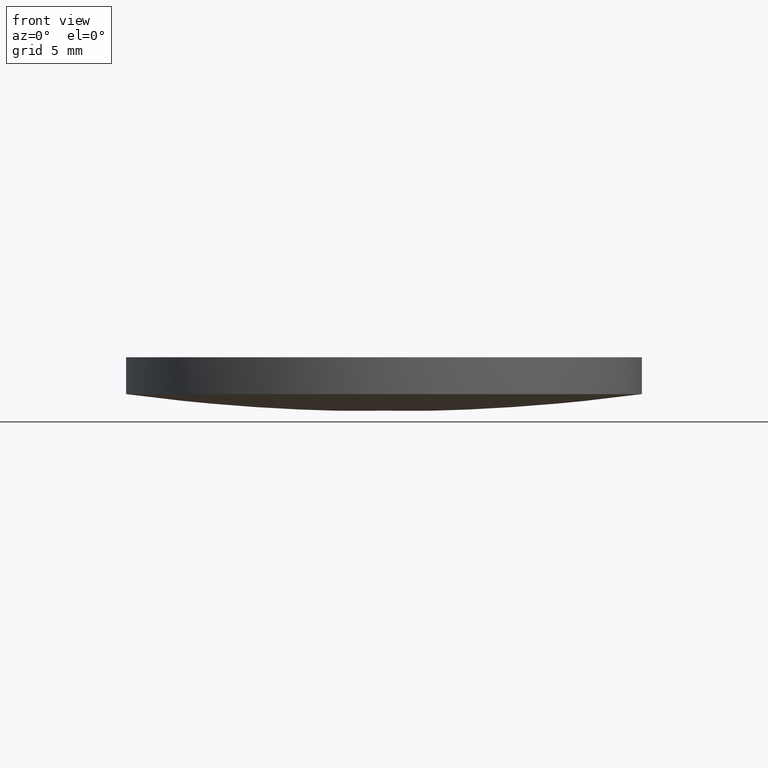
[diagram: clean part render]
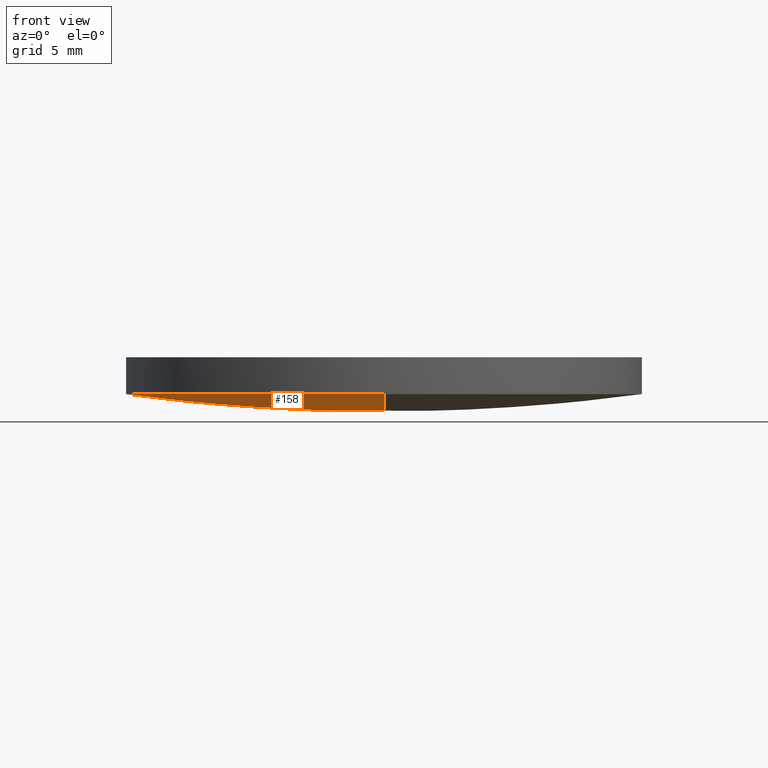
[diagram: same view with one face highlighted and labeled with its STEP entity id]
A machine part, front view. The second image highlights one B-rep face of the part: STEP entity #158.
In plain terms, the highlighted face is a freeform B-spline surface patch.
Its self-contained STEP definition (entity closure, byte-faithful):
#14 = DIRECTION ( 'NONE',  ( 1.000000000000000000, 0.0000000000000000000, 2.056625150099659900E-016 ) ) ;
#24 = FACE_OUTER_BOUND ( 'NONE', #64, .T. ) ;
#28 = VERTEX_POINT ( 'NONE', #86 ) ;
#37 = CARTESIAN_POINT ( 'NONE',  ( -12.84889362810145000, -6.465189879962330200, -0.005844034717618937900 ) ) ;
#38 = CARTESIAN_POINT ( 'NONE',  ( -18.98819399149936200, 19.27720950375859800, 2.587027409410580500 ) ) ;
#46 =( BOUNDED_SURFACE ( )  B_SPLINE_SURFACE ( 3, 3, ( 
 ( #114, #59, #56, #93 ),
 ( #200, #37, #76, #91 ),
 ( #95, #217, #181, #149 ),
 ( #38, #55, #216, #235 ) ),
 .UNSPECIFIED., .F., .F., .T. ) 
 B_SPLINE_SURFACE_WITH_KNOTS ( ( 4, 4 ),
 ( 4, 4 ),
 ( 0.0000000000000000000, 1.000000000000000000 ),
 ( 0.0000000000000000000, 1.000000000000000000 ),
 .UNSPECIFIED. ) 
 GEOMETRIC_REPRESENTATION_ITEM ( )  RATIONAL_B_SPLINE_SURFACE ( (
 ( 1.000000000000000000, 0.9984906929497666700, 0.9984906929497666700, 1.000000000000000000),
 ( 0.9938975684485722400, 0.9923974718413030000, 0.9923974718413030000, 0.9938975684485722400),
 ( 0.9938975684485722400, 0.9923974718413030000, 0.9923974718413030000, 0.9938975684485722400),
 ( 1.000000000000000000, 0.9984906929497666700, 0.9984906929497666700, 1.000000000000000000) ) ) 
 REPRESENTATION_ITEM ( '' )  SURFACE ( )  );
#55 = CARTESIAN_POINT ( 'NONE',  ( -12.69231461685210300, 19.27720950375859800, 1.734414582622074300 ) ) ;
#56 = CARTESIAN_POINT ( 'NONE',  ( -6.353349174452251400, -19.27720950375861300, 1.307140838315827200 ) ) ;
#58 = ORIENTED_EDGE ( 'NONE', *, *, #193, .F. ) ;
#59 = CARTESIAN_POINT ( 'NONE',  ( -12.69231461685210300, -19.27720950375861300, 1.734414582622074300 ) ) ;
#64 = EDGE_LOOP ( 'NONE', ( #58, #68, #196 ) ) ;
#68 = ORIENTED_EDGE ( 'NONE', *, *, #224, .T. ) ;
#76 = CARTESIAN_POINT ( 'NONE',  ( -6.431727402686268700, -6.465189879962330200, -0.4383888507263787900 ) ) ;
#78 = CARTESIAN_POINT ( 'NONE',  ( -4.662936703425659800E-015, -8.881784197001250400E-016, 1.276371230808250000 ) ) ;
#81 = EDGE_CURVE ( 'NONE', #107, #208, #139, .T. ) ;
#86 = CARTESIAN_POINT ( 'NONE',  ( 2.910610542600875300E-014, -19.04999999999994000, 1.276371230808255100 ) ) ;
#89 = CARTESIAN_POINT ( 'NONE',  ( 2.910610542600875300E-014, 19.04999999999991500, 1.276371230808255100 ) ) ;
#91 = CARTESIAN_POINT ( 'NONE',  ( -3.469446951953614200E-015, -6.465189879962331100, -0.4383888507263790600 ) ) ;
#93 = CARTESIAN_POINT ( 'NONE',  ( -3.469446951953614200E-015, -19.27720950375861300, 1.307140838315826700 ) ) ;
#95 = CARTESIAN_POINT ( 'NONE',  ( -19.22244225356593700, 6.465189879962316900, 0.8572870684788609400 ) ) ;
#103 = CIRCLE ( 'NONE', #142, 19.05000000000000100 ) ;
#107 = VERTEX_POINT ( 'NONE', #108 ) ;
#108 = CARTESIAN_POINT ( 'NONE',  ( -19.05000000000000400, 1.444773732675583000E-015, 1.276371230808250000 ) ) ;
#109 = DIRECTION ( 'NONE',  ( -0.0000000000000000000, -0.0000000000000000000, -1.000000000000000000 ) ) ;
#111 = DIRECTION ( 'NONE',  ( 1.000000000000000000, 0.0000000000000000000, 0.0000000000000000000 ) ) ;
#114 = CARTESIAN_POINT ( 'NONE',  ( -18.98819399149936200, -19.27720950375861300, 2.587027409410580500 ) ) ;
#116 = AXIS2_PLACEMENT_3D ( 'NONE', #226, #109, #111 ) ;
#120 = CIRCLE ( 'NONE', #201, 142.7999999999999800 ) ;
#135 = DIRECTION ( 'NONE',  ( 1.000000000000000000, 0.0000000000000000000, 0.0000000000000000000 ) ) ;
#139 = CIRCLE ( 'NONE', #116, 19.05000000000000100 ) ;
#142 = AXIS2_PLACEMENT_3D ( 'NONE', #78, #155, #135 ) ;
#147 = DIRECTION ( 'NONE',  ( 0.0000000000000000000, -1.000000000000000000, 0.0000000000000000000 ) ) ;
#149 = CARTESIAN_POINT ( 'NONE',  ( -3.469446951953614200E-015, 6.465189879962316900, -0.4383888507263824500 ) ) ;
#155 = DIRECTION ( 'NONE',  ( -0.0000000000000000000, -0.0000000000000000000, -1.000000000000000000 ) ) ;
#158 = ADVANCED_FACE ( 'NONE', ( #24 ), #46, .T. ) ;
#181 = CARTESIAN_POINT ( 'NONE',  ( -6.431727402686268700, 6.465189879962315100, -0.4383888507263822300 ) ) ;
#193 = EDGE_CURVE ( 'NONE', #28, #208, #120, .T. ) ;
#196 = ORIENTED_EDGE ( 'NONE', *, *, #81, .T. ) ;
#200 = CARTESIAN_POINT ( 'NONE',  ( -19.22244225356593700, -6.465189879962331100, 0.8572870684788646000 ) ) ;
#201 = AXIS2_PLACEMENT_3D ( 'NONE', #232, #14, #147 ) ;
#208 = VERTEX_POINT ( 'NONE', #89 ) ;
#216 = CARTESIAN_POINT ( 'NONE',  ( -6.353349174452251400, 19.27720950375859800, 1.307140838315827200 ) ) ;
#217 = CARTESIAN_POINT ( 'NONE',  ( -12.84889362810145000, 6.465189879962315100, -0.005844034717622623300 ) ) ;
#224 = EDGE_CURVE ( 'NONE', #28, #107, #103, .T. ) ;
#226 = CARTESIAN_POINT ( 'NONE',  ( -4.662936703425659800E-015, -8.881784197001250400E-016, 1.276371230808250000 ) ) ;
#232 = CARTESIAN_POINT ( 'NONE',  ( 0.0000000000000000000, -2.842170943040400100E-014, 142.8000000000000100 ) ) ;
#235 = CARTESIAN_POINT ( 'NONE',  ( -3.469446951953614200E-015, 19.27720950375859800, 1.307140838315826700 ) ) ;